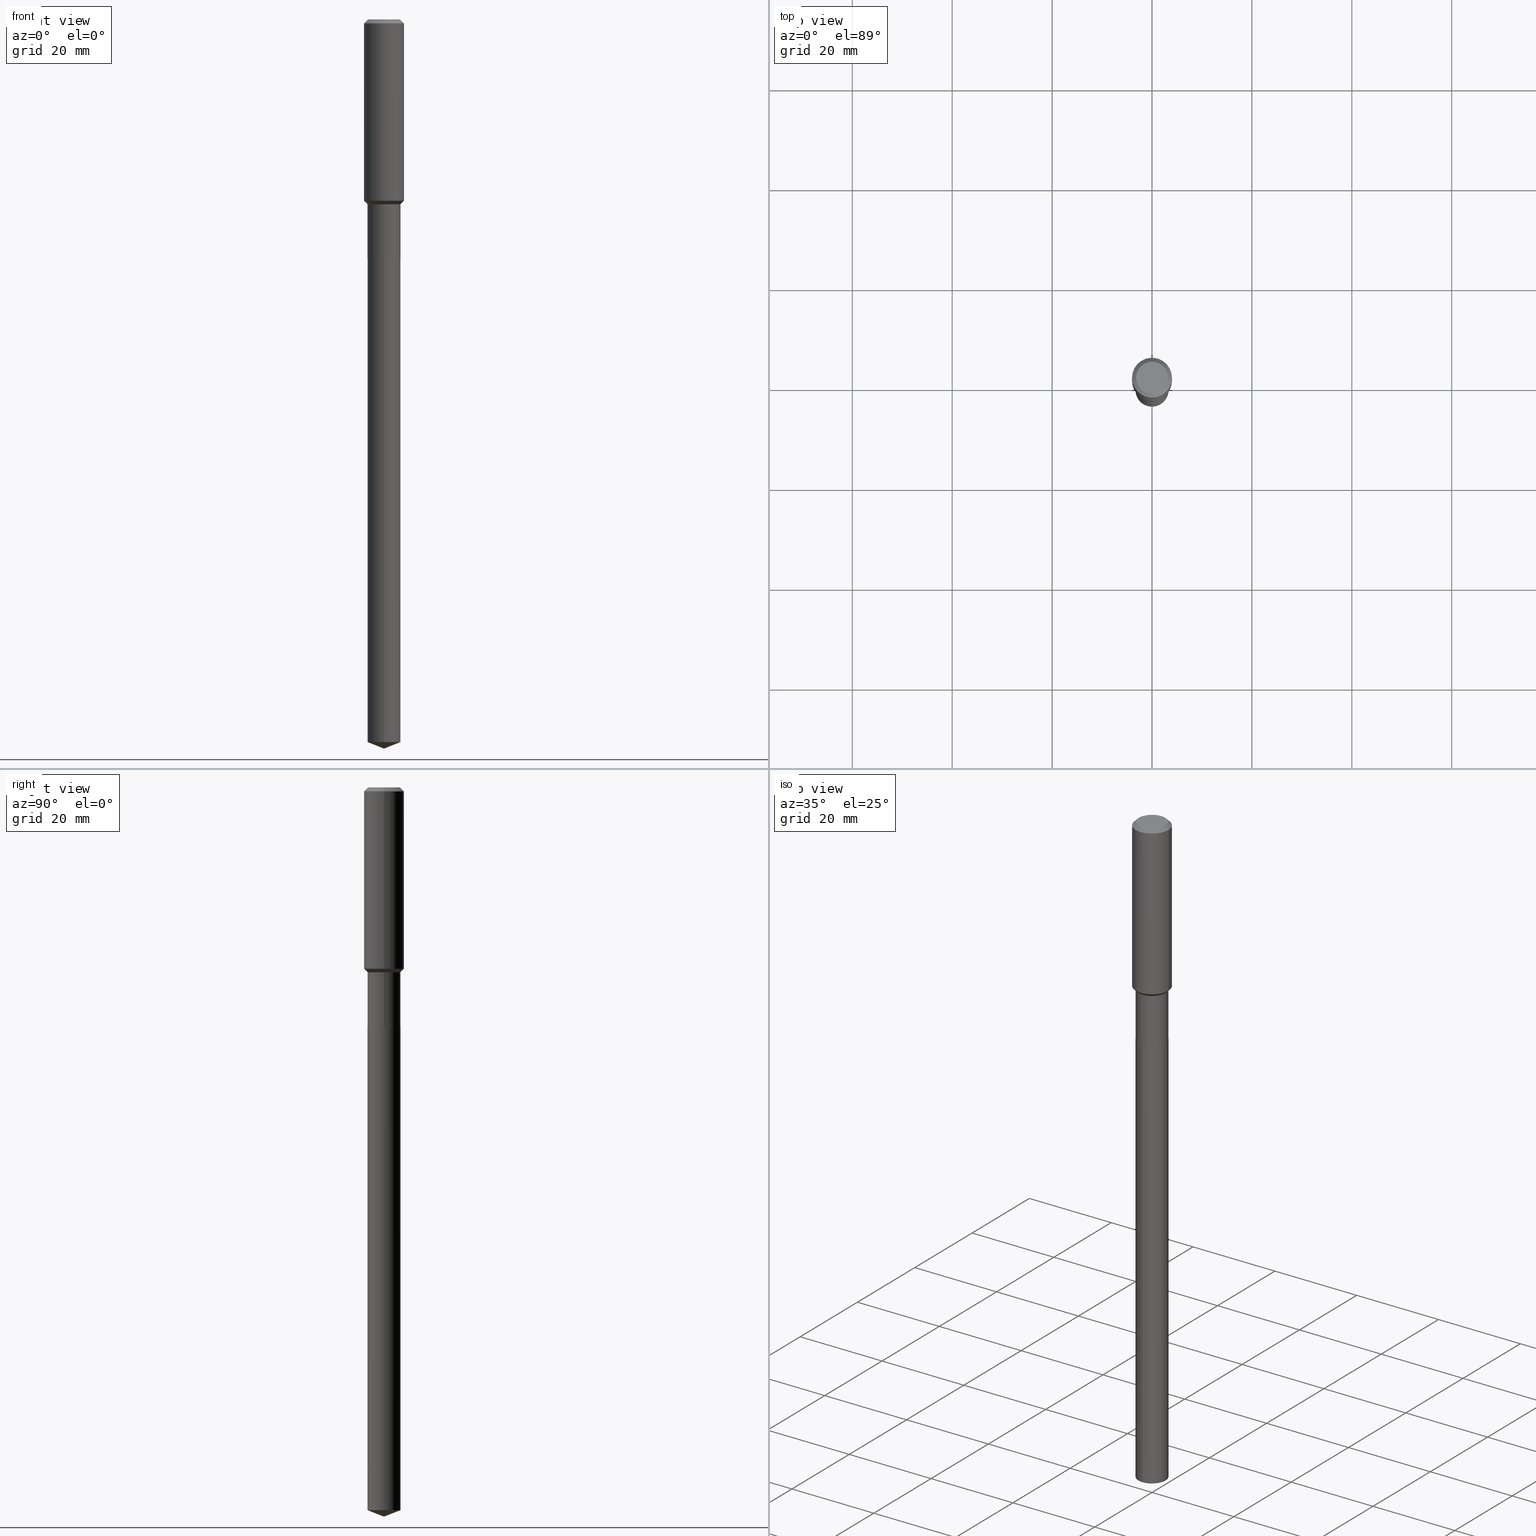
[diagram: canonical four-view strip — front | top / right | iso, engineering-drawing reading convention]
A machine part, canonical four-view strip (front | top / right | iso — engineering-drawing reading convention). The complete STEP part file that produces these views, byte-faithful:
ISO-10303-21;
HEADER;
FILE_DESCRIPTION (( 'STEP AP203' ),
    '1' );
FILE_NAME ('66745.STEP',
    '2024-04-25T05:07:40',
    ( '' ),
    ( '' ),
    'SwSTEP 2.0',
    'SolidWorks 2023',
    '' );
FILE_SCHEMA (( 'CONFIG_CONTROL_DESIGN' ));
ENDSEC;

DATA;
#1 = EDGE_LOOP ( 'NONE', ( #364, #226, #349, #102 ) ) ;
#2 = CARTESIAN_POINT ( 'NONE',  ( 0.1298999999999999599, -9.070868518314457948E-16, 6.334153631758918028E-30 ) ) ;
#3 = ADVANCED_BREP_SHAPE_REPRESENTATION ( '66745', ( #194, #365, #212 ), #233 ) ;
#4 = VECTOR ( 'NONE', #15, 39.37007874015748143 ) ;
#5 = EDGE_CURVE ( 'NONE', #215, #296, #61, .T. ) ;
#6 = APPLICATION_PROTOCOL_DEFINITION ( 'international standard', 'config_control_design', 1994, #98 ) ;
#7 = CARTESIAN_POINT ( 'NONE',  ( 0.1575000000000000011, -1.190510096822576026E-15, -0.03150000000000019451 ) ) ;
#8 = DIRECTION ( 'NONE',  ( -2.445468806185136597E-29, 3.491481338843145583E-15, 1.000000000000000000 ) ) ;
#9 = EDGE_CURVE ( 'NONE', #64, #11, #239, .T. ) ;
#10 = DIRECTION ( 'NONE',  ( -2.445505241732245177E-29, 3.491429161065903895E-15, 1.000000000000000000 ) ) ;
#11 = VERTEX_POINT ( 'NONE', #385 ) ;
#12 = DIRECTION ( 'NONE',  ( 1.000000000000000000, -6.982962677686263555E-15, 0.000000000000000000 ) ) ;
#13 = CYLINDRICAL_SURFACE ( 'NONE', #384, 0.1298999999999999599 ) ;
#14 = CARTESIAN_POINT ( 'NONE',  ( 4.611665074703930138E-29, -6.584235508790403973E-15, -1.885799999999999921 ) ) ;
#15 = DIRECTION ( 'NONE',  ( -2.445468806185136877E-29, 3.491481338843145188E-15, 1.000000000000000000 ) ) ;
#16 = CARTESIAN_POINT ( 'NONE',  ( 4.610442340300837897E-29, -6.582489768120982469E-15, -1.885299999999999976 ) ) ;
#17 = LINE ( 'NONE', #51, #293 ) ;
#18 = CARTESIAN_POINT ( 'NONE',  ( 4.611665074703930138E-29, -6.584235508790403973E-15, -1.885799999999999921 ) ) ;
#19 = CLOSED_SHELL ( 'NONE', ( #485, #429, #225, #181, #150 ) ) ;
#20 = PERSON_AND_ORGANIZATION ( #49, #411 ) ;
#21 = AXIS2_PLACEMENT_3D ( 'NONE', #179, #66, #368 ) ;
#22 = DIRECTION ( 'NONE',  ( 1.000000000000000000, -6.982962677686267499E-15, 4.876176775795936353E-29 ) ) ;
#23 = DIRECTION ( 'NONE',  ( -0.7071067811865451302, 2.468850131082231817E-15, -0.7071067811865499042 ) ) ;
#24 = ORIENTED_EDGE ( 'NONE', *, *, #80, .F. ) ;
#25 = CARTESIAN_POINT ( 'NONE',  ( 0.1575000000000001676, -6.090540047477979098E-15, -1.429399999999999782 ) ) ;
#26 = EDGE_CURVE ( 'NONE', #323, #447, #230, .T. ) ;
#27 = EDGE_LOOP ( 'NONE', ( #72, #449, #420, #360 ) ) ;
#28 = VECTOR ( 'NONE', #141, 39.37007874015748854 ) ;
#29 = PERSON_AND_ORGANIZATION_ROLE ( 'creator' ) ;
#30 = EDGE_LOOP ( 'NONE', ( #381, #253 ) ) ;
#31 = APPROVAL_DATE_TIME ( #221, #57 ) ;
#32 = PERSON_AND_ORGANIZATION_ROLE ( 'creator' ) ;
#33 = VERTEX_POINT ( 'NONE', #118 ) ;
#34 = APPROVAL ( #393, 'UNSPECIFIED' ) ;
#35 = ORIENTED_EDGE ( 'NONE', *, *, #362, .F. ) ;
#36 = PERSON_AND_ORGANIZATION ( #49, #411 ) ;
#37 = AXIS2_PLACEMENT_3D ( 'NONE', #464, #125, #311 ) ;
#38 = DIRECTION ( 'NONE',  ( 0.7071067811865503483, -2.468850131082286248E-15, 0.7071067811865446862 ) ) ;
#39 = DATE_AND_TIME ( #421, #454 ) ;
#40 = PRODUCT ( '66745', '66745', '', ( #389 ) ) ;
#41 = DIRECTION ( 'NONE',  ( 1.000000000000000000, -6.982962677686263555E-15, 0.000000000000000000 ) ) ;
#42 = AXIS2_PLACEMENT_3D ( 'NONE', #109, #189, #41 ) ;
#43 = ADVANCED_FACE ( 'NONE', ( #75 ), #261, .F. ) ;
#44 = CARTESIAN_POINT ( 'NONE',  ( 3.563048050611743587E-29, -5.087088310694461770E-15, -1.456999999999999851 ) ) ;
#45 = DIRECTION ( 'NONE',  ( 1.000000000000000000, -6.982962677686267499E-15, 0.000000000000000000 ) ) ;
#46 = DIRECTION ( 'NONE',  ( 1.000000000000000000, -6.982962677686265922E-15, 0.000000000000000000 ) ) ;
#47 = CARTESIAN_POINT ( 'NONE',  ( 4.611665074703930138E-29, -6.584235508790403973E-15, -1.885799999999999921 ) ) ;
#48 = EDGE_LOOP ( 'NONE', ( #337, #314, #335, #112 ) ) ;
#49 = PERSON ( 'UNSPECIFIED', 'UNSPECIFIED', 'UNSPECIFIED', ('UNSPECIFIED'), ('UNSPECIFIED'), ('UNSPECIFIED') ) ;
#50 = AXIS2_PLACEMENT_3D ( 'NONE', #468, #127, #271 ) ;
#51 = CARTESIAN_POINT ( 'NONE',  ( -0.1298999999999999599, 9.229950137523698568E-16, -6.389696682241120408E-30 ) ) ;
#52 = CARTESIAN_POINT ( 'NONE',  ( -9.439721640706201686E-47, 1.347742071746726764E-32, 3.860086710912459732E-18 ) ) ;
#53 = EDGE_CURVE ( 'NONE', #447, #105, #425, .T. ) ;
#54 = DIRECTION ( 'NONE',  ( -2.445468806185136597E-29, 3.491481338843145583E-15, 1.000000000000000000 ) ) ;
#55 = CARTESIAN_POINT ( 'NONE',  ( -0.1575000000000000844, 1.119104808822158392E-15, -7.747322767151481189E-30 ) ) ;
#56 = CARTESIAN_POINT ( 'NONE',  ( 1.405676412947694160E-28, -2.006873481780681575E-14, -5.748000000000000220 ) ) ;
#57 = APPROVAL ( #187, 'UNSPECIFIED' ) ;
#58 = CARTESIAN_POINT ( 'NONE',  ( -0.1293999999999999873, -5.664793208716833831E-15, -1.885799999999999921 ) ) ;
#59 = CARTESIAN_POINT ( 'NONE',  ( -0.1260000000000000009, 9.348441284752484904E-16, 3.860086710906114178E-18 ) ) ;
#60 = EDGE_LOOP ( 'NONE', ( #336, #100, #373, #216 ) ) ;
#61 = CIRCLE ( 'NONE', #159, 0.1293999999999999873 ) ;
#62 = VECTOR ( 'NONE', #367, 39.37007874015748143 ) ;
#63 = CIRCLE ( 'NONE', #286, 0.1298999999999999322 ) ;
#64 = VERTEX_POINT ( 'NONE', #59 ) ;
#65 = EDGE_CURVE ( 'NONE', #186, #269, #183, .T. ) ;
#66 = DIRECTION ( 'NONE',  ( -2.445505241732245177E-29, 3.491429161065903895E-15, 1.000000000000000000 ) ) ;
#67 = CARTESIAN_POINT ( 'NONE',  ( 7.703226739483228723E-31, -1.099816621735597661E-16, -0.03150000000000019451 ) ) ;
#68 = ORIENTED_EDGE ( 'NONE', *, *, #436, .T. ) ;
#69 = AXIS2_PLACEMENT_3D ( 'NONE', #123, #267, #86 ) ;
#70 = COORDINATED_UNIVERSAL_TIME_OFFSET ( 5, 0, .BEHIND. ) ;
#71 = FACE_OUTER_BOUND ( 'NONE', #156, .T. ) ;
#72 = ORIENTED_EDGE ( 'NONE', *, *, #357, .F. ) ;
#73 = DIRECTION ( 'NONE',  ( -6.982962677686266711E-15, -1.000000000000000000, 0.000000000000000000 ) ) ;
#74 = VERTEX_POINT ( 'NONE', #56 ) ;
#75 = FACE_OUTER_BOUND ( 'NONE', #30, .T. ) ;
#76 = DIMENSIONAL_EXPONENTS ( 1.000000000000000000, 0.000000000000000000, 0.000000000000000000, 0.000000000000000000, 0.000000000000000000, 0.000000000000000000, 0.000000000000000000 ) ;
#77 = CARTESIAN_POINT ( 'NONE',  ( 4.611665074703930138E-29, -6.584235508790403973E-15, -1.885799999999999921 ) ) ;
#78 = AXIS2_PLACEMENT_3D ( 'NONE', #47, #174, #201 ) ;
#79 = AXIS2_PLACEMENT_3D ( 'NONE', #52, #8, #158 ) ;
#80 = EDGE_CURVE ( 'NONE', #276, #346, #283, .T. ) ;
#81 = CARTESIAN_POINT ( 'NONE',  ( 1.393156143305985192E-28, -1.989018037792780127E-14, -5.696831029217619857 ) ) ;
#82 = EDGE_CURVE ( 'NONE', #396, #33, #153, .T. ) ;
#83 = SECURITY_CLASSIFICATION ( '', '', #379 ) ;
#84 = DIRECTION ( 'NONE',  ( 2.438088387897960049E-29, -3.491481338843145188E-15, -1.000000000000000000 ) ) ;
#85 = CARTESIAN_POINT ( 'NONE',  ( -0.1575000000000000011, -1.431247735135817146E-15, -0.03150000000000019451 ) ) ;
#86 = DIRECTION ( 'NONE',  ( 1.000000000000000000, -6.982962677686265133E-15, 0.000000000000000000 ) ) ;
#87 = FACE_OUTER_BOUND ( 'NONE', #445, .T. ) ;
#88 = DIRECTION ( 'NONE',  ( -2.445468806185136597E-29, 3.491481338843145583E-15, 1.000000000000000000 ) ) ;
#89 = DIRECTION ( 'NONE',  ( 1.000000000000000000, -6.982962677686266711E-15, 4.876176775795935232E-29 ) ) ;
#90 = CYLINDRICAL_SURFACE ( 'NONE', #200, 0.1575000000000000844 ) ;
#91 = VECTOR ( 'NONE', #268, 39.37007874015748143 ) ;
#92 = AXIS2_PLACEMENT_3D ( 'NONE', #81, #124, #73 ) ;
#93 = CC_DESIGN_APPROVAL ( #444, ( #317 ) ) ;
#94 = EDGE_CURVE ( 'NONE', #33, #396, #219, .T. ) ;
#95 = CARTESIAN_POINT ( 'NONE',  ( 7.703226739483228723E-31, -1.099816621735597661E-16, -0.03150000000000019451 ) ) ;
#96 = ORIENTED_EDGE ( 'NONE', *, *, #338, .T. ) ;
#97 = LINE ( 'NONE', #58, #264 ) ;
#98 = APPLICATION_CONTEXT ( 'configuration controlled 3d designs of mechanical parts and assemblies' ) ;
#99 = CARTESIAN_POINT ( 'NONE',  ( -4.719860820353100843E-47, 6.738710358733633822E-33, 1.930043355456229866E-18 ) ) ;
#100 = ORIENTED_EDGE ( 'NONE', *, *, #479, .T. ) ;
#101 = EDGE_LOOP ( 'NONE', ( #249, #356 ) ) ;
#102 = ORIENTED_EDGE ( 'NONE', *, *, #26, .F. ) ;
#103 = EDGE_CURVE ( 'NONE', #186, #276, #472, .T. ) ;
#104 = AXIS2_PLACEMENT_3D ( 'NONE', #167, #88, #236 ) ;
#105 = VERTEX_POINT ( 'NONE', #207 ) ;
#106 = CARTESIAN_POINT ( 'NONE',  ( -0.1298999999999999322, -4.911794025655352657E-15, -1.456999999999999851 ) ) ;
#107 =( CONVERSION_BASED_UNIT ( 'INCH', #442 ) LENGTH_UNIT ( ) NAMED_UNIT ( #76 ) );
#108 = ADVANCED_FACE ( 'NONE', ( #87 ), #90, .T. ) ;
#109 = CARTESIAN_POINT ( 'NONE',  ( 3.563048050611743587E-29, -5.087088310694461770E-15, -1.456999999999999851 ) ) ;
#110 = CIRCLE ( 'NONE', #229, 0.1293999999999999873 ) ;
#111 = AXIS2_PLACEMENT_3D ( 'NONE', #440, #480, #279 ) ;
#112 = ORIENTED_EDGE ( 'NONE', *, *, #53, .F. ) ;
#113 = DIRECTION ( 'NONE',  ( 1.000000000000000000, -6.982962677686265133E-15, 0.000000000000000000 ) ) ;
#114 = DATE_AND_TIME ( #227, #351 ) ;
#115 = ORIENTED_EDGE ( 'NONE', *, *, #388, .F. ) ;
#116 = PERSON_AND_ORGANIZATION_ROLE ( 'design_supplier' ) ;
#117 = ADVANCED_FACE ( 'NONE', ( #235 ), #294, .T. ) ;
#118 = CARTESIAN_POINT ( 'NONE',  ( 0.1298999999999999877, -7.489576619952428856E-15, -1.885299999999999976 ) ) ;
#119 = AXIS2_PLACEMENT_3D ( 'NONE', #355, #196, #161 ) ;
#120 = LINE ( 'NONE', #7, #375 ) ;
#121 = AXIS2_PLACEMENT_3D ( 'NONE', #99, #84, #205 ) ;
#122 = CARTESIAN_POINT ( 'NONE',  ( 0.1293999999999999873, -7.487830879283006563E-15, -1.885799999999999921 ) ) ;
#123 = CARTESIAN_POINT ( 'NONE',  ( 4.611665074703930138E-29, -6.584235508790403973E-15, -1.885799999999999921 ) ) ;
#124 = DIRECTION ( 'NONE',  ( -2.445505241732245177E-29, 3.491429161065903895E-15, 1.000000000000000000 ) ) ;
#125 = DIRECTION ( 'NONE',  ( -2.445505241732245177E-29, 3.491429161065903895E-15, 1.000000000000000000 ) ) ;
#126 = ORIENTED_EDGE ( 'NONE', *, *, #94, .F. ) ;
#127 = DIRECTION ( 'NONE',  ( -2.445505241732245177E-29, 3.491429161065903895E-15, 1.000000000000000000 ) ) ;
#128 = CARTESIAN_POINT ( 'NONE',  ( 9.229950137525098796E-16, 0.1298999999999934096, -1.885800000000000365 ) ) ;
#129 = DIRECTION ( 'NONE',  ( 0.7071067811866078578, -2.468850131082888544E-15, 0.7071067811864871766 ) ) ;
#130 = ORIENTED_EDGE ( 'NONE', *, *, #262, .F. ) ;
#131 = VECTOR ( 'NONE', #348, 39.37007874015748143 ) ;
#132 = DIRECTION ( 'NONE',  ( -2.445468806185136597E-29, 3.491481338843145583E-15, 1.000000000000000000 ) ) ;
#133 = LINE ( 'NONE', #352, #131 ) ;
#134 = UNCERTAINTY_MEASURE_WITH_UNIT (LENGTH_MEASURE( 1.000000000000000082E-05 ), #107, 'distance_accuracy_value', 'NONE');
#135 = EDGE_CURVE ( 'NONE', #488, #447, #137, .T. ) ;
#136 = LINE ( 'NONE', #282, #28 ) ;
#137 = CIRCLE ( 'NONE', #145, 0.1575000000000001676 ) ;
#138 = CONICAL_SURFACE ( 'NONE', #21, 99.94676754584030220, 1.195550537616120623 ) ;
#139 = EDGE_CURVE ( 'NONE', #269, #346, #133, .T. ) ;
#140 = LINE ( 'NONE', #217, #438 ) ;
#141 = DIRECTION ( 'NONE',  ( 6.611014441532069744E-15, 0.9304175679820275713, 0.3665012267242894195 ) ) ;
#142 = CC_DESIGN_DATE_AND_TIME_ASSIGNMENT ( #39, #224, ( #83 ) ) ;
#143 = DIRECTION ( 'NONE',  ( 1.000000000000000000, -6.982962677686265922E-15, 0.000000000000000000 ) ) ;
#144 = ORIENTED_EDGE ( 'NONE', *, *, #82, .T. ) ;
#145 = AXIS2_PLACEMENT_3D ( 'NONE', #169, #316, #45 ) ;
#146 = ORIENTED_EDGE ( 'NONE', *, *, #266, .F. ) ;
#147 = EDGE_LOOP ( 'NONE', ( #309, #144, #482, #291 ) ) ;
#148 = ORIENTED_EDGE ( 'NONE', *, *, #53, .T. ) ;
#149 = DATE_AND_TIME ( #331, #255 ) ;
#150 = ADVANCED_FACE ( 'NONE', ( #166 ), #281, .F. ) ;
#151 = CALENDAR_DATE ( 2024, 25, 4 ) ;
#152 = ORIENTED_EDGE ( 'NONE', *, *, #172, .T. ) ;
#153 = CIRCLE ( 'NONE', #431, 0.1298999999999999877 ) ;
#154 = CIRCLE ( 'NONE', #79, 0.1260000000000000009 ) ;
#155 = CC_DESIGN_SECURITY_CLASSIFICATION ( #83, ( #317 ) ) ;
#156 = EDGE_LOOP ( 'NONE', ( #340, #178, #146 ) ) ;
#157 = FACE_OUTER_BOUND ( 'NONE', #48, .T. ) ;
#158 = DIRECTION ( 'NONE',  ( 1.000000000000000000, -6.982962677686265922E-15, 4.876281427513067258E-29 ) ) ;
#159 = AXIS2_PLACEMENT_3D ( 'NONE', #77, #188, #113 ) ;
#160 = VECTOR ( 'NONE', #129, 39.37007874015748143 ) ;
#161 = DIRECTION ( 'NONE',  ( 6.982962677686265922E-15, 1.000000000000000000, -3.491429161065903501E-15 ) ) ;
#162 = FACE_OUTER_BOUND ( 'NONE', #1, .T. ) ;
#163 = DIRECTION ( 'NONE',  ( 1.000000000000000000, -6.982962677686265133E-15, 0.000000000000000000 ) ) ;
#164 = EDGE_CURVE ( 'NONE', #296, #33, #395, .T. ) ;
#165 = CARTESIAN_POINT ( 'NONE',  ( -9.070868518313998437E-16, -0.1299000000000065935, -1.885799999999999255 ) ) ;
#166 = FACE_OUTER_BOUND ( 'NONE', #101, .T. ) ;
#167 = CARTESIAN_POINT ( 'NONE',  ( 0.000000000000000000, 0.000000000000000000, 0.000000000000000000 ) ) ;
#168 = DIRECTION ( 'NONE',  ( 2.445468806185136597E-29, -3.491481338843145583E-15, -1.000000000000000000 ) ) ;
#169 = CARTESIAN_POINT ( 'NONE',  ( 3.495553111561033613E-29, -4.990723425742391618E-15, -1.429399999999999782 ) ) ;
#170 = ORIENTED_EDGE ( 'NONE', *, *, #139, .F. ) ;
#171 = AXIS2_PLACEMENT_3D ( 'NONE', #358, #405, #315 ) ;
#172 = EDGE_CURVE ( 'NONE', #296, #215, #110, .T. ) ;
#173 =( NAMED_UNIT ( * ) SI_UNIT ( $, .STERADIAN. ) SOLID_ANGLE_UNIT ( ) );
#174 = DIRECTION ( 'NONE',  ( -2.445505241732245177E-29, 3.491429161065903895E-15, 1.000000000000000000 ) ) ;
#175 = CARTESIAN_POINT ( 'NONE',  ( 3.563048050611743587E-29, -5.087088310694461770E-15, -1.456999999999999851 ) ) ;
#176 = ORIENTED_EDGE ( 'NONE', *, *, #103, .F. ) ;
#177 = DIRECTION ( 'NONE',  ( -6.497071151882122203E-15, -0.9304175679820250178, 0.3665012267242960253 ) ) ;
#178 = ORIENTED_EDGE ( 'NONE', *, *, #455, .T. ) ;
#179 = CARTESIAN_POINT ( 'NONE',  ( -8.222303850714413929E-28, 1.173890077721874663E-13, 33.62207874015748388 ) ) ;
#180 = APPROVAL_ROLE ( '' ) ;
#181 = ADVANCED_FACE ( 'NONE', ( #245 ), #361, .T. ) ;
#182 = ORIENTED_EDGE ( 'NONE', *, *, #94, .T. ) ;
#183 = CIRCLE ( 'NONE', #372, 0.1298999999999999877 ) ;
#184 = CIRCLE ( 'NONE', #50, 0.1298999999999999877 ) ;
#185 = EDGE_CURVE ( 'NONE', #346, #276, #184, .T. ) ;
#186 = VERTEX_POINT ( 'NONE', #430 ) ;
#187 = APPROVAL_STATUS ( 'not_yet_approved' ) ;
#188 = DIRECTION ( 'NONE',  ( -2.445468806185136597E-29, 3.491481338843145583E-15, 1.000000000000000000 ) ) ;
#189 = DIRECTION ( 'NONE',  ( -2.445468806185136597E-29, 3.491481338843145583E-15, 1.000000000000000000 ) ) ;
#190 = DIRECTION ( 'NONE',  ( 1.000000000000000000, 0.000000000000000000, 0.000000000000000000 ) ) ;
#191 = EDGE_CURVE ( 'NONE', #447, #488, #343, .T. ) ;
#192 = APPROVAL_DATE_TIME ( #300, #34 ) ;
#193 = CLOSED_SHELL ( 'NONE', ( #419, #466, #320, #304, #399, #327, #374, #108, #199, #43, #285, #117 ) ) ;
#194 = MANIFOLD_SOLID_BREP ( 'Body-Move/Copy2[1]', #19 ) ;
#195 = APPROVAL_PERSON_ORGANIZATION ( #20, #34, #237 ) ;
#196 = DIRECTION ( 'NONE',  ( 2.445505241732244896E-29, -3.491429161065903501E-15, -1.000000000000000000 ) ) ;
#197 = EDGE_LOOP ( 'NONE', ( #35, #247, #68, #382 ) ) ;
#198 = PLANE ( 'NONE',  #171 ) ;
#199 = ADVANCED_FACE ( 'NONE', ( #434 ), #398, .T. ) ;
#200 = AXIS2_PLACEMENT_3D ( 'NONE', #359, #427, #22 ) ;
#201 = DIRECTION ( 'NONE',  ( -6.982962677686266711E-15, -1.000000000000000000, 4.206078512185163024E-15 ) ) ;
#202 = EDGE_LOOP ( 'NONE', ( #152, #353, #126, #328 ) ) ;
#203 = DIRECTION ( 'NONE',  ( -2.445468806185136877E-29, 3.491481338843145188E-15, 1.000000000000000000 ) ) ;
#204 = CC_DESIGN_PERSON_AND_ORGANIZATION_ASSIGNMENT ( #383, #116, ( #317 ) ) ;
#205 = DIRECTION ( 'NONE',  ( -1.000000000000000000, 6.982962677686265922E-15, -4.876176775795935793E-29 ) ) ;
#206 = DIRECTION ( 'NONE',  ( 1.000000000000000000, -6.982962677686267499E-15, 4.876176775795936353E-29 ) ) ;
#207 = CARTESIAN_POINT ( 'NONE',  ( 0.1575000000000000011, -1.209798283909146741E-15, -0.03150000000000019451 ) ) ;
#208 = EDGE_CURVE ( 'NONE', #74, #269, #136, .T. ) ;
#209 = APPLICATION_PROTOCOL_DEFINITION ( 'international standard', 'config_control_design', 1994, #387 ) ;
#210 = CARTESIAN_POINT ( 'NONE',  ( 1.393156143305985192E-28, -1.989018037792780127E-14, -5.696831029217619857 ) ) ;
#211 = CIRCLE ( 'NONE', #92, 0.1298999999999999877 ) ;
#212 = AXIS2_PLACEMENT_3D ( 'NONE', #242, #428, #190 ) ;
#213 = EDGE_CURVE ( 'NONE', #105, #321, #471, .T. ) ;
#214 = FACE_OUTER_BOUND ( 'NONE', #218, .T. ) ;
#215 = VERTEX_POINT ( 'NONE', #474 ) ;
#216 = ORIENTED_EDGE ( 'NONE', *, *, #135, .F. ) ;
#217 = CARTESIAN_POINT ( 'NONE',  ( -0.1575000000000000011, 9.898349595620272334E-16, -0.03150000000000019451 ) ) ;
#218 = EDGE_LOOP ( 'NONE', ( #465, #426, #417 ) ) ;
#219 = CIRCLE ( 'NONE', #274, 0.1298999999999999877 ) ;
#220 = AXIS2_PLACEMENT_3D ( 'NONE', #44, #330, #484 ) ;
#221 = DATE_AND_TIME ( #290, #400 ) ;
#222 = EDGE_LOOP ( 'NONE', ( #378, #489, #24, #176 ) ) ;
#223 = CARTESIAN_POINT ( 'NONE',  ( 9.229950137525092880E-16, 0.1298999999999801147, -5.696831029217619857 ) ) ;
#224 = DATE_TIME_ROLE ( 'classification_date' ) ;
#225 = ADVANCED_FACE ( 'NONE', ( #71 ), #306, .T. ) ;
#226 = ORIENTED_EDGE ( 'NONE', *, *, #250, .T. ) ;
#227 = CALENDAR_DATE ( 2024, 25, 4 ) ;
#228 = DIRECTION ( 'NONE',  ( -0.7071067811865503483, 7.493145998870363626E-15, 0.7071067811865446862 ) ) ;
#229 = AXIS2_PLACEMENT_3D ( 'NONE', #14, #308, #163 ) ;
#230 = LINE ( 'NONE', #418, #333 ) ;
#231 = LOCAL_TIME ( 1, 7, 40.00000000000000000, #345 ) ;
#232 = CONICAL_SURFACE ( 'NONE', #446, 0.1298999999999999322, 0.7853981633974522758 ) ;
#233 =( GEOMETRIC_REPRESENTATION_CONTEXT ( 3 ) GLOBAL_UNCERTAINTY_ASSIGNED_CONTEXT ( ( #134 ) ) GLOBAL_UNIT_ASSIGNED_CONTEXT ( ( #107, #475, #173 ) ) REPRESENTATION_CONTEXT ( 'NONE', 'WORKASPACE' ) );
#234 = DIRECTION ( 'NONE',  ( -6.982962677686266711E-15, -1.000000000000000000, 0.000000000000000000 ) ) ;
#235 = FACE_OUTER_BOUND ( 'NONE', #27, .T. ) ;
#236 = DIRECTION ( 'NONE',  ( 1.000000000000000000, -6.982962677686266711E-15, 4.876176775795935232E-29 ) ) ;
#237 = APPROVAL_ROLE ( '' ) ;
#238 = DIRECTION ( 'NONE',  ( -2.445468806185136597E-29, 3.491481338843145583E-15, 1.000000000000000000 ) ) ;
#239 = CIRCLE ( 'NONE', #409, 0.1260000000000000009 ) ;
#240 = CARTESIAN_POINT ( 'NONE',  ( 3.495553111561033613E-29, -4.990723425742391618E-15, -1.429399999999999782 ) ) ;
#241 = DIRECTION ( 'NONE',  ( 1.000000000000000000, -6.982962677686268288E-15, 0.000000000000000000 ) ) ;
#242 = CARTESIAN_POINT ( 'NONE',  ( 0.000000000000000000, 0.000000000000000000, 0.000000000000000000 ) ) ;
#243 = PERSON_AND_ORGANIZATION_ROLE ( 'design_owner' ) ;
#244 = CARTESIAN_POINT ( 'NONE',  ( -0.1575000000000001676, -3.871618616920231648E-15, -1.429399999999999782 ) ) ;
#245 = FACE_OUTER_BOUND ( 'NONE', #366, .T. ) ;
#246 = ORIENTED_EDGE ( 'NONE', *, *, #362, .T. ) ;
#247 = ORIENTED_EDGE ( 'NONE', *, *, #9, .F. ) ;
#248 = CARTESIAN_POINT ( 'NONE',  ( -8.222303850714413929E-28, 1.173890077721874663E-13, 33.62207874015748388 ) ) ;
#249 = ORIENTED_EDGE ( 'NONE', *, *, #80, .T. ) ;
#250 = EDGE_CURVE ( 'NONE', #258, #488, #312, .T. ) ;
#251 = PERSON_AND_ORGANIZATION ( #49, #411 ) ;
#252 = DIRECTION ( 'NONE',  ( -1.000000000000000000, 6.982962677686265922E-15, 0.000000000000000000 ) ) ;
#253 = ORIENTED_EDGE ( 'NONE', *, *, #408, .T. ) ;
#254 = VECTOR ( 'NONE', #228, 39.37007874015748143 ) ;
#255 = LOCAL_TIME ( 1, 7, 40.00000000000000000, #490 ) ;
#256 = SHAPE_DEFINITION_REPRESENTATION ( #452, #3 ) ;
#257 = DIRECTION ( 'NONE',  ( 1.000000000000000000, -6.982962677686265922E-15, 4.876281427513067258E-29 ) ) ;
#258 = VERTEX_POINT ( 'NONE', #106 ) ;
#259 = ORIENTED_EDGE ( 'NONE', *, *, #135, .T. ) ;
#260 = PERSON_AND_ORGANIZATION_ROLE ( 'classification_officer' ) ;
#261 = PLANE ( 'NONE',  #121 ) ;
#262 = EDGE_CURVE ( 'NONE', #323, #258, #461, .T. ) ;
#263 = DIRECTION ( 'NONE',  ( 0.7071067811865451302, -7.319954787623248157E-15, -0.7071067811865499042 ) ) ;
#264 = VECTOR ( 'NONE', #303, 39.37007874015748143 ) ;
#265 = DIRECTION ( 'NONE',  ( -2.445468806185136597E-29, 3.491481338843145583E-15, 1.000000000000000000 ) ) ;
#266 = EDGE_CURVE ( 'NONE', #269, #186, #211, .T. ) ;
#267 = DIRECTION ( 'NONE',  ( -2.445468806185136597E-29, 3.491481338843145583E-15, 1.000000000000000000 ) ) ;
#268 = DIRECTION ( 'NONE',  ( -2.445468806185136877E-29, 3.491481338843145188E-15, 1.000000000000000000 ) ) ;
#269 = VERTEX_POINT ( 'NONE', #223 ) ;
#270 = FACE_OUTER_BOUND ( 'NONE', #147, .T. ) ;
#271 = DIRECTION ( 'NONE',  ( -6.982962677686266711E-15, -1.000000000000000000, 4.206078512185163024E-15 ) ) ;
#272 = CARTESIAN_POINT ( 'NONE',  ( 0.000000000000000000, 0.000000000000000000, 0.000000000000000000 ) ) ;
#273 = EDGE_CURVE ( 'NONE', #321, #105, #390, .T. ) ;
#274 = AXIS2_PLACEMENT_3D ( 'NONE', #394, #265, #275 ) ;
#275 = DIRECTION ( 'NONE',  ( 1.000000000000000000, -6.982962677686268288E-15, 0.000000000000000000 ) ) ;
#276 = VERTEX_POINT ( 'NONE', #165 ) ;
#277 = CONICAL_SURFACE ( 'NONE', #422, 0.1575000000000000011, 0.7853981633974449483 ) ;
#278 = FACE_OUTER_BOUND ( 'NONE', #469, .T. ) ;
#279 = DIRECTION ( 'NONE',  ( -6.982962677686266711E-15, -1.000000000000000000, 4.206078512185163024E-15 ) ) ;
#280 = ORIENTED_EDGE ( 'NONE', *, *, #408, .F. ) ;
#281 = PLANE ( 'NONE',  #119 ) ;
#282 = CARTESIAN_POINT ( 'NONE',  ( 1.405676533449084633E-28, -2.006873481780681575E-14, -5.748000000000000220 ) ) ;
#283 = CIRCLE ( 'NONE', #78, 0.1298999999999999877 ) ;
#284 = AXIS2_PLACEMENT_3D ( 'NONE', #95, #319, #252 ) ;
#285 = ADVANCED_FACE ( 'NONE', ( #278 ), #198, .F. ) ;
#286 = AXIS2_PLACEMENT_3D ( 'NONE', #175, #132, #412 ) ;
#287 = CYLINDRICAL_SURFACE ( 'NONE', #111, 0.1298999999999999877 ) ;
#288 = APPROVAL_ROLE ( '' ) ;
#289 = EDGE_CURVE ( 'NONE', #488, #321, #354, .T. ) ;
#290 = CALENDAR_DATE ( 2024, 25, 4 ) ;
#291 = ORIENTED_EDGE ( 'NONE', *, *, #479, .F. ) ;
#292 = DIRECTION ( 'NONE',  ( -2.445468806185136597E-29, 3.491481338843145583E-15, 1.000000000000000000 ) ) ;
#293 = VECTOR ( 'NONE', #203, 39.37007874015748143 ) ;
#294 = CONICAL_SURFACE ( 'NONE', #324, 0.1293999999999999873, 0.7853981633975336552 ) ;
#295 = CC_DESIGN_APPROVAL ( #34, ( #423 ) ) ;
#296 = VERTEX_POINT ( 'NONE', #347 ) ;
#297 = COORDINATED_UNIVERSAL_TIME_OFFSET ( 5, 0, .BEHIND. ) ;
#298 = ORIENTED_EDGE ( 'NONE', *, *, #5, .F. ) ;
#299 = DIRECTION ( 'NONE',  ( -2.445468806185136597E-29, 3.491481338843145583E-15, 1.000000000000000000 ) ) ;
#300 = DATE_AND_TIME ( #151, #231 ) ;
#301 = ORIENTED_EDGE ( 'NONE', *, *, #273, .F. ) ;
#302 = AXIS2_PLACEMENT_3D ( 'NONE', #67, #371, #143 ) ;
#303 = DIRECTION ( 'NONE',  ( -0.7071067811866078578, 7.493145998870571886E-15, 0.7071067811864871766 ) ) ;
#304 = ADVANCED_FACE ( 'NONE', ( #162 ), #232, .T. ) ;
#305 = FACE_OUTER_BOUND ( 'NONE', #202, .T. ) ;
#306 = CONICAL_SURFACE ( 'NONE', #416, 99.94676754584030220, 1.195550537616120623 ) ;
#307 = VECTOR ( 'NONE', #177, 39.37007874015748143 ) ;
#308 = DIRECTION ( 'NONE',  ( -2.445468806185136597E-29, 3.491481338843145583E-15, 1.000000000000000000 ) ) ;
#309 = ORIENTED_EDGE ( 'NONE', *, *, #338, .F. ) ;
#310 = DIRECTION ( 'NONE',  ( -2.445468806185136597E-29, 3.491481338843145583E-15, 1.000000000000000000 ) ) ;
#311 = DIRECTION ( 'NONE',  ( -6.982962677686266711E-15, -1.000000000000000000, 4.206078512185163024E-15 ) ) ;
#312 = LINE ( 'NONE', #407, #254 ) ;
#313 = DIRECTION ( 'NONE',  ( 1.000000000000000000, -6.982962677686267499E-15, 0.000000000000000000 ) ) ;
#314 = ORIENTED_EDGE ( 'NONE', *, *, #289, .T. ) ;
#315 = DIRECTION ( 'NONE',  ( 1.000000000000000000, -6.982962677686265922E-15, 4.876176775795935793E-29 ) ) ;
#316 = DIRECTION ( 'NONE',  ( -2.445468806185136597E-29, 3.491481338843145583E-15, 1.000000000000000000 ) ) ;
#317 = PRODUCT_DEFINITION_FORMATION_WITH_SPECIFIED_SOURCE ( 'ANY', '', #40, .NOT_KNOWN. ) ;
#318 = CARTESIAN_POINT ( 'NONE',  ( 1.405662670916746908E-28, -2.006893161151146203E-14, -5.748000000000000220 ) ) ;
#319 = DIRECTION ( 'NONE',  ( 2.445468806185136597E-29, -3.491481338843145583E-15, -1.000000000000000000 ) ) ;
#320 = ADVANCED_FACE ( 'NONE', ( #157 ), #397, .T. ) ;
#321 = VERTEX_POINT ( 'NONE', #85 ) ;
#322 = FACE_OUTER_BOUND ( 'NONE', #413, .T. ) ;
#323 = VERTEX_POINT ( 'NONE', #435 ) ;
#324 = AXIS2_PLACEMENT_3D ( 'NONE', #18, #470, #406 ) ;
#325 = CARTESIAN_POINT ( 'NONE',  ( 7.703226739483228723E-31, -1.099816621735597661E-16, -0.03150000000000019451 ) ) ;
#326 = ORIENTED_EDGE ( 'NONE', *, *, #266, .T. ) ;
#327 = ADVANCED_FACE ( 'NONE', ( #270 ), #344, .T. ) ;
#328 = ORIENTED_EDGE ( 'NONE', *, *, #164, .F. ) ;
#329 = CARTESIAN_POINT ( 'NONE',  ( 7.703226739483228723E-31, -1.099816621735597661E-16, -0.03150000000000019451 ) ) ;
#330 = DIRECTION ( 'NONE',  ( -2.445468806185136597E-29, 3.491481338843145583E-15, 1.000000000000000000 ) ) ;
#331 = CALENDAR_DATE ( 2024, 25, 4 ) ;
#332 = ORIENTED_EDGE ( 'NONE', *, *, #185, .F. ) ;
#333 = VECTOR ( 'NONE', #38, 39.37007874015748143 ) ;
#334 = CONICAL_SURFACE ( 'NONE', #69, 0.1293999999999999873, 0.7853981633975336552 ) ;
#335 = ORIENTED_EDGE ( 'NONE', *, *, #213, .F. ) ;
#336 = ORIENTED_EDGE ( 'NONE', *, *, #250, .F. ) ;
#337 = ORIENTED_EDGE ( 'NONE', *, *, #191, .T. ) ;
#338 = EDGE_CURVE ( 'NONE', #396, #258, #17, .T. ) ;
#339 = LINE ( 'NONE', #2, #62 ) ;
#340 = ORIENTED_EDGE ( 'NONE', *, *, #208, .F. ) ;
#341 = PRODUCT_RELATED_PRODUCT_CATEGORY ( 'detail', '', ( #40 ) ) ;
#342 = VECTOR ( 'NONE', #437, 39.37007874015748143 ) ;
#343 = CIRCLE ( 'NONE', #453, 0.1575000000000001676 ) ;
#344 = CYLINDRICAL_SURFACE ( 'NONE', #104, 0.1298999999999999599 ) ;
#345 = COORDINATED_UNIVERSAL_TIME_OFFSET ( 5, 0, .BEHIND. ) ;
#346 = VERTEX_POINT ( 'NONE', #128 ) ;
#347 = CARTESIAN_POINT ( 'NONE',  ( 0.1293999999999999873, -7.487830879283006563E-15, -1.885799999999999921 ) ) ;
#348 = DIRECTION ( 'NONE',  ( -2.445505241732245177E-29, 3.491429161065903501E-15, 1.000000000000000000 ) ) ;
#349 = ORIENTED_EDGE ( 'NONE', *, *, #191, .F. ) ;
#350 = CARTESIAN_POINT ( 'NONE',  ( 3.563048050611743587E-29, -5.087088310694461770E-15, -1.456999999999999851 ) ) ;
#351 = LOCAL_TIME ( 1, 7, 40.00000000000000000, #297 ) ;
#352 = CARTESIAN_POINT ( 'NONE',  ( 9.229950137524160052E-16, 0.1298999999999934096, -1.885800000000000365 ) ) ;
#353 = ORIENTED_EDGE ( 'NONE', *, *, #357, .T. ) ;
#354 = LINE ( 'NONE', #55, #4 ) ;
#355 = CARTESIAN_POINT ( 'NONE',  ( 4.611665074703930138E-29, -6.584235508790403973E-15, -1.885799999999999921 ) ) ;
#356 = ORIENTED_EDGE ( 'NONE', *, *, #185, .T. ) ;
#357 = EDGE_CURVE ( 'NONE', #215, #396, #97, .T. ) ;
#358 = CARTESIAN_POINT ( 'NONE',  ( 4.611665074703930138E-29, -6.584235508790403973E-15, -1.885799999999999921 ) ) ;
#359 = CARTESIAN_POINT ( 'NONE',  ( 0.000000000000000000, 0.000000000000000000, 0.000000000000000000 ) ) ;
#360 = ORIENTED_EDGE ( 'NONE', *, *, #82, .F. ) ;
#361 = CYLINDRICAL_SURFACE ( 'NONE', #37, 0.1298999999999999877 ) ;
#362 = EDGE_CURVE ( 'NONE', #11, #105, #120, .T. ) ;
#363 =( LENGTH_UNIT ( ) NAMED_UNIT ( * ) SI_UNIT ( $, .METRE. ) );
#364 = ORIENTED_EDGE ( 'NONE', *, *, #262, .T. ) ;
#365 = MANIFOLD_SOLID_BREP ( 'Body-Move/Copy2[2]', #193 ) ;
#366 = EDGE_LOOP ( 'NONE', ( #170, #326, #448, #332 ) ) ;
#367 = DIRECTION ( 'NONE',  ( -2.445468806185136877E-29, 3.491481338843145188E-15, 1.000000000000000000 ) ) ;
#368 = DIRECTION ( 'NONE',  ( -6.982962677686266711E-15, -1.000000000000000000, 3.498627837349992784E-15 ) ) ;
#369 = ORIENTED_EDGE ( 'NONE', *, *, #289, .F. ) ;
#370 = LINE ( 'NONE', #318, #307 ) ;
#371 = DIRECTION ( 'NONE',  ( -2.445468806185136597E-29, 3.491481338843145583E-15, 1.000000000000000000 ) ) ;
#372 = AXIS2_PLACEMENT_3D ( 'NONE', #210, #10, #234 ) ;
#373 = ORIENTED_EDGE ( 'NONE', *, *, #26, .T. ) ;
#374 = ADVANCED_FACE ( 'NONE', ( #392 ), #433, .T. ) ;
#375 = VECTOR ( 'NONE', #263, 39.37007874015748143 ) ;
#376 = APPROVAL_PERSON_ORGANIZATION ( #36, #57, #180 ) ;
#377 = FACE_OUTER_BOUND ( 'NONE', #222, .T. ) ;
#378 = ORIENTED_EDGE ( 'NONE', *, *, #65, .T. ) ;
#379 = SECURITY_CLASSIFICATION_LEVEL ( 'unclassified' ) ;
#380 = DIRECTION ( 'NONE',  ( -2.445505241732245177E-29, 3.491429161065903895E-15, 1.000000000000000000 ) ) ;
#381 = ORIENTED_EDGE ( 'NONE', *, *, #9, .T. ) ;
#382 = ORIENTED_EDGE ( 'NONE', *, *, #273, .T. ) ;
#383 = PERSON_AND_ORGANIZATION ( #49, #411 ) ;
#384 = AXIS2_PLACEMENT_3D ( 'NONE', #463, #238, #89 ) ;
#385 = CARTESIAN_POINT ( 'NONE',  ( 0.1260000000000000009, -1.027466422270894443E-15, 3.860086710919128072E-18 ) ) ;
#386 = DATE_TIME_ROLE ( 'creation_date' ) ;
#387 = APPLICATION_CONTEXT ( 'configuration controlled 3d designs of mechanical parts and assemblies' ) ;
#388 = EDGE_CURVE ( 'NONE', #33, #323, #339, .T. ) ;
#389 = MECHANICAL_CONTEXT ( 'NONE', #98, 'mechanical' ) ;
#390 = CIRCLE ( 'NONE', #487, 0.1575000000000000011 ) ;
#391 = APPROVAL_PERSON_ORGANIZATION ( #450, #444, #288 ) ;
#392 = FACE_OUTER_BOUND ( 'NONE', #60, .T. ) ;
#393 = APPROVAL_STATUS ( 'not_yet_approved' ) ;
#394 = CARTESIAN_POINT ( 'NONE',  ( 4.610442340300837897E-29, -6.582489768120982469E-15, -1.885299999999999976 ) ) ;
#395 = LINE ( 'NONE', #122, #160 ) ;
#396 = VERTEX_POINT ( 'NONE', #441 ) ;
#397 = CYLINDRICAL_SURFACE ( 'NONE', #410, 0.1575000000000000844 ) ;
#398 = CONICAL_SURFACE ( 'NONE', #284, 0.1575000000000000011, 0.7853981633974449483 ) ;
#399 = ADVANCED_FACE ( 'NONE', ( #458 ), #13, .T. ) ;
#400 = LOCAL_TIME ( 1, 7, 40.00000000000000000, #70 ) ;
#401 = DIRECTION ( 'NONE',  ( -2.445468806185136597E-29, 3.491481338843145583E-15, 1.000000000000000000 ) ) ;
#402 = EDGE_LOOP ( 'NONE', ( #182, #96, #130, #115 ) ) ;
#403 = CC_DESIGN_PERSON_AND_ORGANIZATION_ASSIGNMENT ( #251, #29, ( #317 ) ) ;
#404 = CARTESIAN_POINT ( 'NONE',  ( 0.1575000000000000844, -1.099816621735587677E-15, 7.679978421878603638E-30 ) ) ;
#405 = DIRECTION ( 'NONE',  ( -2.438088387897960049E-29, 3.491481338843145188E-15, 1.000000000000000000 ) ) ;
#406 = DIRECTION ( 'NONE',  ( 1.000000000000000000, -6.982962677686265133E-15, 0.000000000000000000 ) ) ;
#407 = CARTESIAN_POINT ( 'NONE',  ( -0.1298999999999999322, -4.164093296942092308E-15, -1.456999999999999851 ) ) ;
#408 = EDGE_CURVE ( 'NONE', #11, #64, #154, .T. ) ;
#409 = AXIS2_PLACEMENT_3D ( 'NONE', #486, #299, #257 ) ;
#410 = AXIS2_PLACEMENT_3D ( 'NONE', #272, #310, #206 ) ;
#411 = ORGANIZATION ( 'UNSPECIFIED', 'UNSPECIFIED', '' ) ;
#412 = DIRECTION ( 'NONE',  ( 1.000000000000000000, -6.982962677686263555E-15, 0.000000000000000000 ) ) ;
#413 = EDGE_LOOP ( 'NONE', ( #280, #246, #451, #476 ) ) ;
#414 = COORDINATED_UNIVERSAL_TIME_OFFSET ( 5, 0, .BEHIND. ) ;
#415 = CC_DESIGN_PERSON_AND_ORGANIZATION_ASSIGNMENT ( #481, #260, ( #83 ) ) ;
#416 = AXIS2_PLACEMENT_3D ( 'NONE', #248, #380, #477 ) ;
#417 = ORIENTED_EDGE ( 'NONE', *, *, #65, .F. ) ;
#418 = CARTESIAN_POINT ( 'NONE',  ( 0.1298999999999999322, -5.994175162525907368E-15, -1.456999999999999851 ) ) ;
#419 = ADVANCED_FACE ( 'NONE', ( #305 ), #334, .T. ) ;
#420 = ORIENTED_EDGE ( 'NONE', *, *, #164, .T. ) ;
#421 = CALENDAR_DATE ( 2024, 25, 4 ) ;
#422 = AXIS2_PLACEMENT_3D ( 'NONE', #325, #168, #473 ) ;
#423 = PRODUCT_DEFINITION ( 'UNKNOWN', '', #317, #459 ) ;
#424 = CC_DESIGN_PERSON_AND_ORGANIZATION_ASSIGNMENT ( #483, #32, ( #423 ) ) ;
#425 = LINE ( 'NONE', #404, #91 ) ;
#426 = ORIENTED_EDGE ( 'NONE', *, *, #208, .T. ) ;
#427 = DIRECTION ( 'NONE',  ( -2.445468806185136597E-29, 3.491481338843145583E-15, 1.000000000000000000 ) ) ;
#428 = DIRECTION ( 'NONE',  ( 0.000000000000000000, 0.000000000000000000, 1.000000000000000000 ) ) ;
#429 = ADVANCED_FACE ( 'NONE', ( #214 ), #138, .T. ) ;
#430 = CARTESIAN_POINT ( 'NONE',  ( -9.070868518313067581E-16, -0.1299000000000198607, -5.696831029217619857 ) ) ;
#431 = AXIS2_PLACEMENT_3D ( 'NONE', #16, #54, #241 ) ;
#432 = CC_DESIGN_PERSON_AND_ORGANIZATION_ASSIGNMENT ( #467, #243, ( #40 ) ) ;
#433 = CONICAL_SURFACE ( 'NONE', #220, 0.1298999999999999322, 0.7853981633974522758 ) ;
#434 = FACE_OUTER_BOUND ( 'NONE', #197, .T. ) ;
#435 = CARTESIAN_POINT ( 'NONE',  ( 0.1298999999999999322, -5.994175162525907368E-15, -1.456999999999999851 ) ) ;
#436 = EDGE_CURVE ( 'NONE', #64, #321, #140, .T. ) ;
#437 = DIRECTION ( 'NONE',  ( -2.445505241732245177E-29, 3.491429161065903501E-15, 1.000000000000000000 ) ) ;
#438 = VECTOR ( 'NONE', #23, 39.37007874015748143 ) ;
#439 = ORIENTED_EDGE ( 'NONE', *, *, #172, .F. ) ;
#440 = CARTESIAN_POINT ( 'NONE',  ( 4.611665074703930138E-29, -6.584235508790403973E-15, -1.885799999999999921 ) ) ;
#441 = CARTESIAN_POINT ( 'NONE',  ( -0.1298999999999999877, -4.911794025655352657E-15, -1.885299999999999976 ) ) ;
#442 = LENGTH_MEASURE_WITH_UNIT ( LENGTH_MEASURE( 0.02539999999999999897 ), #363 );
#443 = APPROVAL_DATE_TIME ( #114, #444 ) ;
#444 = APPROVAL ( #478, 'UNSPECIFIED' ) ;
#445 = EDGE_LOOP ( 'NONE', ( #369, #259, #148, #301 ) ) ;
#446 = AXIS2_PLACEMENT_3D ( 'NONE', #350, #457, #12 ) ;
#447 = VERTEX_POINT ( 'NONE', #25 ) ;
#448 = ORIENTED_EDGE ( 'NONE', *, *, #103, .T. ) ;
#449 = ORIENTED_EDGE ( 'NONE', *, *, #5, .T. ) ;
#450 = PERSON_AND_ORGANIZATION ( #49, #411 ) ;
#451 = ORIENTED_EDGE ( 'NONE', *, *, #213, .T. ) ;
#452 = PRODUCT_DEFINITION_SHAPE ( 'NONE', 'NONE',  #423 ) ;
#453 = AXIS2_PLACEMENT_3D ( 'NONE', #240, #401, #313 ) ;
#454 = LOCAL_TIME ( 1, 7, 40.00000000000000000, #414 ) ;
#455 = EDGE_CURVE ( 'NONE', #74, #186, #370, .T. ) ;
#456 = CC_DESIGN_DATE_AND_TIME_ASSIGNMENT ( #149, #386, ( #423 ) ) ;
#457 = DIRECTION ( 'NONE',  ( -2.445468806185136597E-29, 3.491481338843145583E-15, 1.000000000000000000 ) ) ;
#458 = FACE_OUTER_BOUND ( 'NONE', #402, .T. ) ;
#459 = DESIGN_CONTEXT ( 'detailed design', #387, 'design' ) ;
#460 = CARTESIAN_POINT ( 'NONE',  ( -9.070868518313998437E-16, -0.1299000000000065935, -1.885799999999999255 ) ) ;
#461 = CIRCLE ( 'NONE', #42, 0.1298999999999999322 ) ;
#462 = CC_DESIGN_APPROVAL ( #57, ( #83 ) ) ;
#463 = CARTESIAN_POINT ( 'NONE',  ( 0.000000000000000000, 0.000000000000000000, 0.000000000000000000 ) ) ;
#464 = CARTESIAN_POINT ( 'NONE',  ( 4.611665074703930138E-29, -6.584235508790403973E-15, -1.885799999999999921 ) ) ;
#465 = ORIENTED_EDGE ( 'NONE', *, *, #455, .F. ) ;
#466 = ADVANCED_FACE ( 'NONE', ( #322 ), #277, .T. ) ;
#467 = PERSON_AND_ORGANIZATION ( #49, #411 ) ;
#468 = CARTESIAN_POINT ( 'NONE',  ( 4.611665074703930138E-29, -6.584235508790403973E-15, -1.885799999999999921 ) ) ;
#469 = EDGE_LOOP ( 'NONE', ( #439, #298 ) ) ;
#470 = DIRECTION ( 'NONE',  ( -2.445468806185136597E-29, 3.491481338843145583E-15, 1.000000000000000000 ) ) ;
#471 = CIRCLE ( 'NONE', #302, 0.1575000000000000011 ) ;
#472 = LINE ( 'NONE', #460, #342 ) ;
#473 = DIRECTION ( 'NONE',  ( -1.000000000000000000, 6.982962677686265922E-15, 0.000000000000000000 ) ) ;
#474 = CARTESIAN_POINT ( 'NONE',  ( -0.1293999999999999873, -5.662143981542723419E-15, -1.885799999999999921 ) ) ;
#475 =( NAMED_UNIT ( * ) PLANE_ANGLE_UNIT ( ) SI_UNIT ( $, .RADIAN. ) );
#476 = ORIENTED_EDGE ( 'NONE', *, *, #436, .F. ) ;
#477 = DIRECTION ( 'NONE',  ( -6.982962677686266711E-15, -1.000000000000000000, 3.498627837349992784E-15 ) ) ;
#478 = APPROVAL_STATUS ( 'not_yet_approved' ) ;
#479 = EDGE_CURVE ( 'NONE', #258, #323, #63, .T. ) ;
#480 = DIRECTION ( 'NONE',  ( -2.445505241732245177E-29, 3.491429161065903895E-15, 1.000000000000000000 ) ) ;
#481 = PERSON_AND_ORGANIZATION ( #49, #411 ) ;
#482 = ORIENTED_EDGE ( 'NONE', *, *, #388, .T. ) ;
#483 = PERSON_AND_ORGANIZATION ( #49, #411 ) ;
#484 = DIRECTION ( 'NONE',  ( 1.000000000000000000, -6.982962677686263555E-15, 0.000000000000000000 ) ) ;
#485 = ADVANCED_FACE ( 'NONE', ( #377 ), #287, .T. ) ;
#486 = CARTESIAN_POINT ( 'NONE',  ( -9.439721640706201686E-47, 1.347742071746726764E-32, 3.860086710912459732E-18 ) ) ;
#487 = AXIS2_PLACEMENT_3D ( 'NONE', #329, #292, #46 ) ;
#488 = VERTEX_POINT ( 'NONE', #244 ) ;
#489 = ORIENTED_EDGE ( 'NONE', *, *, #139, .T. ) ;
#490 = COORDINATED_UNIVERSAL_TIME_OFFSET ( 5, 0, .BEHIND. ) ;
ENDSEC;
END-ISO-10303-21;
